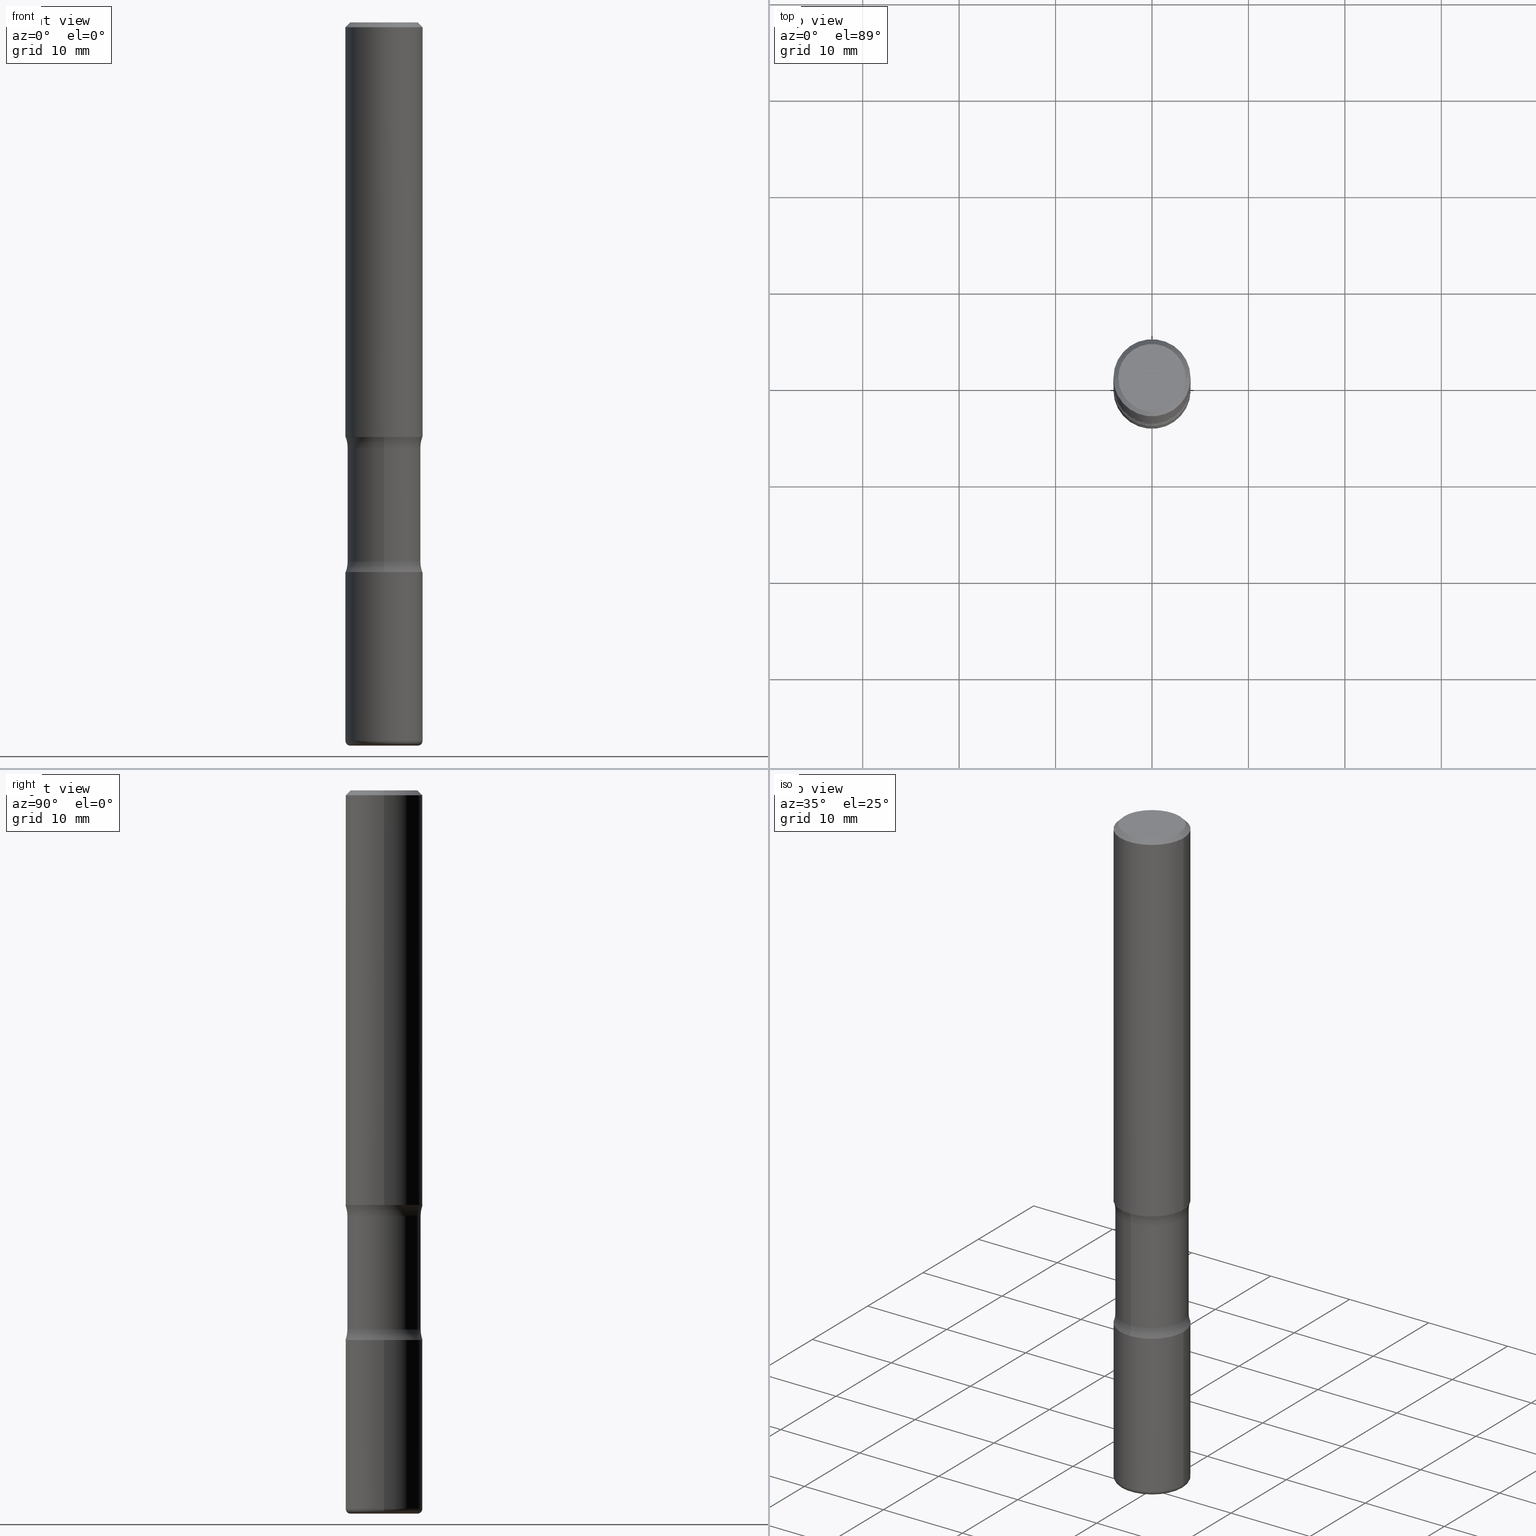
[diagram: canonical four-view strip — front | top / right | iso, engineering-drawing reading convention]
A machine part, canonical four-view strip (front | top / right | iso — engineering-drawing reading convention). The complete STEP part file that produces these views, byte-faithful:
ISO-10303-21;
HEADER;
FILE_DESCRIPTION (( 'STEP AP203' ),
    '1' );
FILE_NAME ('47655.STEP',
    '2024-03-02T06:32:56',
    ( '' ),
    ( '' ),
    'SwSTEP 2.0',
    'SolidWorks 2023',
    '' );
FILE_SCHEMA (( 'CONFIG_CONTROL_DESIGN' ));
ENDSEC;

DATA;
#1 = DIRECTION ( 'NONE',  ( -2.131257620516682695E-29, 3.941449640510431903E-15, 1.000000000000000000 ) ) ;
#2 = APPROVAL_STATUS ( 'not_yet_approved' ) ;
#3 = FACE_OUTER_BOUND ( 'NONE', #237, .T. ) ;
#4 = LINE ( 'NONE', #135, #240 ) ;
#5 = ORIENTED_EDGE ( 'NONE', *, *, #348, .F. ) ;
#6 = CARTESIAN_POINT ( 'NONE',  ( -0.1575000000000000011, 1.119104808822157801E-15, -7.747322767151475583E-30 ) ) ;
#7 = AXIS2_PLACEMENT_3D ( 'NONE', #51, #301, #9 ) ;
#8 = CIRCLE ( 'NONE', #286, 0.1575000000000000844 ) ;
#9 = DIRECTION ( 'NONE',  ( 1.000000000000000000, -6.982962677686272233E-15, 0.000000000000000000 ) ) ;
#10 = PERSON ( 'UNSPECIFIED', 'UNSPECIFIED', 'UNSPECIFIED', ('UNSPECIFIED'), ('UNSPECIFIED'), ('UNSPECIFIED') ) ;
#11 = EDGE_LOOP ( 'NONE', ( #337, #365 ) ) ;
#12 = DIRECTION ( 'NONE',  ( 2.131257620516683255E-29, -3.941449640510431903E-15, -1.000000000000000000 ) ) ;
#13 = VERTEX_POINT ( 'NONE', #328 ) ;
#14 = CARTESIAN_POINT ( 'NONE',  ( 0.1575000000000000844, -8.935049894233489031E-15, -2.244099999999999540 ) ) ;
#15 = ADVANCED_FACE ( 'NONE', ( #201 ), #378, .T. ) ;
#16 = UNCERTAINTY_MEASURE_WITH_UNIT (LENGTH_MEASURE( 1.000000000000000082E-05 ), #236, 'distance_accuracy_value', 'NONE');
#17 = ORIENTED_EDGE ( 'NONE', *, *, #103, .T. ) ;
#18 = EDGE_CURVE ( 'NONE', #362, #153, #387, .T. ) ;
#19 = CIRCLE ( 'NONE', #438, 0.1249999999999999861 ) ;
#20 = LOCAL_TIME ( 1, 32, 56.00000000000000000, #57 ) ;
#21 = ORIENTED_EDGE ( 'NONE', *, *, #131, .T. ) ;
#22 = ORIENTED_EDGE ( 'NONE', *, *, #316, .T. ) ;
#23 = ORIENTED_EDGE ( 'NONE', *, *, #485, .F. ) ;
#24 = ADVANCED_FACE ( 'NONE', ( #461 ), #80, .F. ) ;
#25 = APPLICATION_CONTEXT ( 'configuration controlled 3d designs of mechanical parts and assemblies' ) ;
#26 = AXIS2_PLACEMENT_3D ( 'NONE', #169, #334, #254 ) ;
#27 = CIRCLE ( 'NONE', #481, 0.1575000000000000566 ) ;
#28 = VERTEX_POINT ( 'NONE', #542 ) ;
#29 = AXIS2_PLACEMENT_3D ( 'NONE', #315, #480, #69 ) ;
#30 = ORIENTED_EDGE ( 'NONE', *, *, #494, .F. ) ;
#31 = PERSON_AND_ORGANIZATION_ROLE ( 'design_owner' ) ;
#32 = EDGE_CURVE ( 'NONE', #207, #486, #376, .T. ) ;
#33 = CARTESIAN_POINT ( 'NONE',  ( -0.1575000000000000289, -9.121759106138672895E-15, -2.933100000000000041 ) ) ;
#34 = APPROVAL_ROLE ( '' ) ;
#35 = CARTESIAN_POINT ( 'NONE',  ( -0.1575000000000000844, -1.871348957896992789E-15, -1.692999999999999616 ) ) ;
#36 = ADVANCED_FACE ( 'NONE', ( #84 ), #501, .T. ) ;
#37 = VERTEX_POINT ( 'NONE', #210 ) ;
#38 = CIRCLE ( 'NONE', #367, 0.01969999999999985998 ) ;
#39 = LOCAL_TIME ( 1, 32, 56.00000000000000000, #385 ) ;
#40 = SHAPE_DEFINITION_REPRESENTATION ( #212, #42 ) ;
#41 = CARTESIAN_POINT ( 'NONE',  ( 5.394669899984199995E-29, -7.662861192454106657E-15, -2.200366831809254631 ) ) ;
#42 = ADVANCED_BREP_SHAPE_REPRESENTATION ( '47655', ( #532, #160, #527, #411 ), #341 ) ;
#43 = VERTEX_POINT ( 'NONE', #244 ) ;
#44 = ADVANCED_FACE ( 'NONE', ( #158 ), #403, .F. ) ;
#45 = PERSON_AND_ORGANIZATION ( #10, #388 ) ;
#46 = DIRECTION ( 'NONE',  ( 0.7071067811865479058, -7.319954787623257623E-15, -0.7071067811865471286 ) ) ;
#47 = DIRECTION ( 'NONE',  ( -2.445468806185136597E-29, 3.491481338843145583E-15, 1.000000000000000000 ) ) ;
#48 = EDGE_LOOP ( 'NONE', ( #326, #23 ) ) ;
#49 = EDGE_CURVE ( 'NONE', #13, #358, #352, .T. ) ;
#50 = LINE ( 'NONE', #554, #271 ) ;
#51 = CARTESIAN_POINT ( 'NONE',  ( 7.172804555421624566E-29, -1.024086391496083050E-14, -2.933100000000000041 ) ) ;
#52 = ORIENTED_EDGE ( 'NONE', *, *, #200, .F. ) ;
#53 = AXIS2_PLACEMENT_3D ( 'NONE', #171, #122, #414 ) ;
#54 = APPROVAL_PERSON_ORGANIZATION ( #45, #528, #34 ) ;
#55 = DIRECTION ( 'NONE',  ( -2.445468806185136597E-29, 3.491481338843145583E-15, 1.000000000000000000 ) ) ;
#56 = EDGE_LOOP ( 'NONE', ( #195, #30, #443, #127 ) ) ;
#57 = COORDINATED_UNIVERSAL_TIME_OFFSET ( 5, 0, .BEHIND. ) ;
#58 = DIRECTION ( 'NONE',  ( -1.000000000000000000, 6.982962677686265922E-15, -4.883557194083112901E-29 ) ) ;
#59 = APPROVAL_DATE_TIME ( #140, #528 ) ;
#60 = CARTESIAN_POINT ( 'NONE',  ( 0.000000000000000000, 0.000000000000000000, 0.000000000000000000 ) ) ;
#61 = DIRECTION ( 'NONE',  ( 6.982962677686264344E-15, 1.000000000000000000, -3.469013325287956843E-15 ) ) ;
#62 = CC_DESIGN_PERSON_AND_ORGANIZATION_ASSIGNMENT ( #83, #31, ( #294 ) ) ;
#63 = DIRECTION ( 'NONE',  ( 1.000000000000000000, -6.982962677686264344E-15, 0.000000000000000000 ) ) ;
#64 = DIRECTION ( 'NONE',  ( 7.105427357601001859E-15, 1.000000000000000000, -3.491481338843145583E-15 ) ) ;
#65 = CLOSED_SHELL ( 'NONE', ( #36, #225, #287, #394, #159, #139 ) ) ;
#66 = CIRCLE ( 'NONE', #29, 0.1378000000000000891 ) ;
#67 = VERTEX_POINT ( 'NONE', #33 ) ;
#68 = EDGE_CURVE ( 'NONE', #390, #366, #446, .T. ) ;
#69 = DIRECTION ( 'NONE',  ( 1.000000000000000000, -6.982962677686261977E-15, 0.000000000000000000 ) ) ;
#70 = ORIENTED_EDGE ( 'NONE', *, *, #348, .T. ) ;
#71 = ADVANCED_FACE ( 'NONE', ( #451 ), #79, .F. ) ;
#72 =( NAMED_UNIT ( * ) PLANE_ANGLE_UNIT ( ) SI_UNIT ( $, .RADIAN. ) );
#73 = ORIENTED_EDGE ( 'NONE', *, *, #194, .F. ) ;
#74 = AXIS2_PLACEMENT_3D ( 'NONE', #41, #510, #255 ) ;
#75 = VECTOR ( 'NONE', #46, 39.37007874015748143 ) ;
#76 = EDGE_LOOP ( 'NONE', ( #5, #293, #318, #138 ) ) ;
#77 = ORIENTED_EDGE ( 'NONE', *, *, #449, .F. ) ;
#78 = CARTESIAN_POINT ( 'NONE',  ( 7.172804555421624566E-29, -1.024086391496083050E-14, -2.933100000000000041 ) ) ;
#79 = PLANE ( 'NONE',  #252 ) ;
#80 = TOROIDAL_SURFACE ( 'NONE', #155, 0.2745999999999999552, 0.1249999999999999861 ) ;
#81 = CIRCLE ( 'NONE', #272, 0.1574999999999998346 ) ;
#82 = ORIENTED_EDGE ( 'NONE', *, *, #121, .T. ) ;
#83 = PERSON_AND_ORGANIZATION ( #10, #388 ) ;
#84 = FACE_OUTER_BOUND ( 'NONE', #189, .T. ) ;
#85 = EDGE_CURVE ( 'NONE', #43, #67, #27, .T. ) ;
#86 = DIRECTION ( 'NONE',  ( 2.131257620516683255E-29, -3.941449640510431903E-15, -1.000000000000000000 ) ) ;
#87 = DIRECTION ( 'NONE',  ( 2.131257620516683255E-29, -3.941449640510431903E-15, -1.000000000000000000 ) ) ;
#88 = DATE_AND_TIME ( #333, #518 ) ;
#89 = FACE_OUTER_BOUND ( 'NONE', #399, .T. ) ;
#90 = ORIENTED_EDGE ( 'NONE', *, *, #32, .T. ) ;
#91 = CIRCLE ( 'NONE', #557, 0.1574999999999998901 ) ;
#92 = APPROVAL_STATUS ( 'not_yet_approved' ) ;
#93 = DIRECTION ( 'NONE',  ( -1.000000000000000000, 6.982962677686266711E-15, 0.000000000000000000 ) ) ;
#94 = CC_DESIGN_PERSON_AND_ORGANIZATION_ASSIGNMENT ( #552, #248, ( #455 ) ) ;
#95 = DIRECTION ( 'NONE',  ( 1.000000000000000000, -6.982962677686279332E-15, 0.000000000000000000 ) ) ;
#96 = LINE ( 'NONE', #134, #75 ) ;
#97 = DATE_AND_TIME ( #133, #20 ) ;
#98 = CARTESIAN_POINT ( 'NONE',  ( 7.172804555421624566E-29, -1.024086391496083050E-14, -2.933100000000000041 ) ) ;
#99 = CYLINDRICAL_SURFACE ( 'NONE', #119, 0.1575000000000000011 ) ;
#100 = ORIENTED_EDGE ( 'NONE', *, *, #251, .F. ) ;
#101 = CONICAL_SURFACE ( 'NONE', #164, 0.1574999999999998901, 0.7853981633974488341 ) ;
#102 = VECTOR ( 'NONE', #145, 39.37007874015748143 ) ;
#103 = EDGE_CURVE ( 'NONE', #67, #129, #347, .T. ) ;
#104 = DIRECTION ( 'NONE',  ( 2.131257620516683255E-29, -3.941449640510431903E-15, -1.000000000000000000 ) ) ;
#105 = LINE ( 'NONE', #425, #396 ) ;
#106 = DIRECTION ( 'NONE',  ( 2.131257620516683255E-29, -3.941449640510431903E-15, -1.000000000000000000 ) ) ;
#107 = EDGE_CURVE ( 'NONE', #274, #270, #280, .T. ) ;
#108 = DIRECTION ( 'NONE',  ( -1.000000000000000000, 6.982962677686265922E-15, -4.876176775795935793E-29 ) ) ;
#109 = EDGE_LOOP ( 'NONE', ( #232, #17, #73, #52 ) ) ;
#110 = PLANE ( 'NONE',  #511 ) ;
#111 = AXIS2_PLACEMENT_3D ( 'NONE', #521, #220, #61 ) ;
#112 = APPROVAL ( #2, 'UNSPECIFIED' ) ;
#113 = ORIENTED_EDGE ( 'NONE', *, *, #487, .T. ) ;
#114 = FACE_OUTER_BOUND ( 'NONE', #450, .T. ) ;
#115 = EDGE_LOOP ( 'NONE', ( #197, #77 ) ) ;
#116 = DIMENSIONAL_EXPONENTS ( 1.000000000000000000, 0.000000000000000000, 0.000000000000000000, 0.000000000000000000, 0.000000000000000000, 0.000000000000000000, 0.000000000000000000 ) ;
#117 = ORIENTED_EDGE ( 'NONE', *, *, #68, .F. ) ;
#118 = EDGE_CURVE ( 'NONE', #229, #486, #217, .T. ) ;
#119 = AXIS2_PLACEMENT_3D ( 'NONE', #60, #47, #311 ) ;
#120 = ORIENTED_EDGE ( 'NONE', *, *, #85, .F. ) ;
#121 = EDGE_CURVE ( 'NONE', #274, #447, #105, .T. ) ;
#122 = DIRECTION ( 'NONE',  ( -2.445468806185136597E-29, 3.491481338843145583E-15, 1.000000000000000000 ) ) ;
#123 = CARTESIAN_POINT ( 'NONE',  ( 7.172804555421624566E-29, -1.024086391496083050E-14, -2.933100000000000041 ) ) ;
#124 = AXIS2_PLACEMENT_3D ( 'NONE', #395, #477, #108 ) ;
#125 = EDGE_LOOP ( 'NONE', ( #531, #534, #82, #166 ) ) ;
#126 = DIRECTION ( 'NONE',  ( 6.982962677686265922E-15, 1.000000000000000000, -3.941449640510431903E-15 ) ) ;
#127 = ORIENTED_EDGE ( 'NONE', *, *, #472, .T. ) ;
#128 = DIRECTION ( 'NONE',  ( 1.000000000000000000, -6.982962677686267499E-15, 4.876176775795936353E-29 ) ) ;
#129 = VERTEX_POINT ( 'NONE', #265 ) ;
#130 = CYLINDRICAL_SURFACE ( 'NONE', #156, 0.1495999999999998442 ) ;
#131 = EDGE_CURVE ( 'NONE', #67, #43, #132, .T. ) ;
#132 = CIRCLE ( 'NONE', #7, 0.1575000000000000566 ) ;
#133 = CALENDAR_DATE ( 2024, 2, 3 ) ;
#134 = CARTESIAN_POINT ( 'NONE',  ( 0.1574999999999998901, -1.150358061425878289E-15, -0.02000000000000000042 ) ) ;
#135 = CARTESIAN_POINT ( 'NONE',  ( -0.1574999999999998901, 1.029986994958723196E-15, -0.02000000000000000042 ) ) ;
#136 = CARTESIAN_POINT ( 'NONE',  ( 4.414045222560160609E-29, -5.824734747842297613E-15, -1.736733168190744969 ) ) ;
#137 = DIRECTION ( 'NONE',  ( 2.131257620516683255E-29, -3.941449640510431903E-15, -1.000000000000000000 ) ) ;
#138 = ORIENTED_EDGE ( 'NONE', *, *, #143, .F. ) ;
#139 = ADVANCED_FACE ( 'NONE', ( #434 ), #99, .T. ) ;
#140 = DATE_AND_TIME ( #349, #219 ) ;
#141 = CIRCLE ( 'NONE', #325, 0.1249999999999999861 ) ;
#142 = CARTESIAN_POINT ( 'NONE',  ( 4.313340473293319484E-29, -5.663100375612603339E-15, -1.692999999999999616 ) ) ;
#143 = EDGE_CURVE ( 'NONE', #13, #37, #4, .T. ) ;
#144 = ORIENTED_EDGE ( 'NONE', *, *, #154, .T. ) ;
#145 = DIRECTION ( 'NONE',  ( -2.445468806185136877E-29, 3.491481338843145188E-15, 1.000000000000000000 ) ) ;
#146 = EDGE_CURVE ( 'NONE', #447, #37, #296, .T. ) ;
#147 = FACE_OUTER_BOUND ( 'NONE', #148, .T. ) ;
#148 = EDGE_LOOP ( 'NONE', ( #282, #370, #144, #479 ) ) ;
#149 = DIRECTION ( 'NONE',  ( 6.982962677686265133E-15, 1.000000000000000000, -3.652203200085917089E-15 ) ) ;
#150 = AXIS2_PLACEMENT_3D ( 'NONE', #190, #64, #276 ) ;
#151 = EDGE_LOOP ( 'NONE', ( #246, #456, #120, #235 ) ) ;
#152 = ORIENTED_EDGE ( 'NONE', *, *, #541, .F. ) ;
#153 = VERTEX_POINT ( 'NONE', #389 ) ;
#154 = EDGE_CURVE ( 'NONE', #215, #43, #38, .T. ) ;
#155 = AXIS2_PLACEMENT_3D ( 'NONE', #537, #371, #539 ) ;
#156 = AXIS2_PLACEMENT_3D ( 'NONE', #288, #86, #423 ) ;
#157 = EDGE_LOOP ( 'NONE', ( #441, #526, #231, #152 ) ) ;
#158 = FACE_OUTER_BOUND ( 'NONE', #56, .T. ) ;
#159 = ADVANCED_FACE ( 'NONE', ( #560 ), #393, .F. ) ;
#160 = MANIFOLD_SOLID_BREP ( 'Body-Move/Copy2[2]', #65 ) ;
#161 = CARTESIAN_POINT ( 'NONE',  ( 4.414045222560160609E-29, -5.824734747842297613E-15, -1.736733168190744969 ) ) ;
#162 = DATE_AND_TIME ( #540, #39 ) ;
#163 = FACE_OUTER_BOUND ( 'NONE', #76, .T. ) ;
#164 = AXIS2_PLACEMENT_3D ( 'NONE', #339, #386, #330 ) ;
#165 = AXIS2_PLACEMENT_3D ( 'NONE', #273, #55, #230 ) ;
#166 = ORIENTED_EDGE ( 'NONE', *, *, #182, .F. ) ;
#167 = COORDINATED_UNIVERSAL_TIME_OFFSET ( 5, 0, .BEHIND. ) ;
#168 = DIRECTION ( 'NONE',  ( 2.131257620516683255E-29, -3.941449640510431903E-15, -1.000000000000000000 ) ) ;
#169 = CARTESIAN_POINT ( 'NONE',  ( 0.000000000000000000, 0.000000000000000000, 0.000000000000000000 ) ) ;
#170 = DIRECTION ( 'NONE',  ( 2.131257620516683255E-29, -3.941449640510431903E-15, -1.000000000000000000 ) ) ;
#171 = CARTESIAN_POINT ( 'NONE',  ( -1.043851414335219820E-46, 1.490343170380447200E-32, 4.268512490100411279E-18 ) ) ;
#172 = SECURITY_CLASSIFICATION_LEVEL ( 'unclassified' ) ;
#173 = DIRECTION ( 'NONE',  ( -2.445468806185136597E-29, 3.491481338843145583E-15, 1.000000000000000000 ) ) ;
#174 = AXIS2_PLACEMENT_3D ( 'NONE', #493, #538, #128 ) ;
#175 = AXIS2_PLACEMENT_3D ( 'NONE', #228, #1, #181 ) ;
#176 = ORIENTED_EDGE ( 'NONE', *, *, #251, .T. ) ;
#177 = APPROVAL_DATE_TIME ( #97, #112 ) ;
#178 = APPROVAL_ROLE ( '' ) ;
#179 = CARTESIAN_POINT ( 'NONE',  ( -1.053429467557764082E-15, -0.1496000000000076158, -2.200366831809253743 ) ) ;
#180 = DIRECTION ( 'NONE',  ( -2.438088387897960049E-29, 3.491481338843145188E-15, 1.000000000000000000 ) ) ;
#181 = DIRECTION ( 'NONE',  ( -6.982962677686265922E-15, -1.000000000000000000, 3.941449640510431903E-15 ) ) ;
#182 = EDGE_CURVE ( 'NONE', #37, #447, #91, .T. ) ;
#183 = CARTESIAN_POINT ( 'NONE',  ( 0.1378000000000000891, -1.120311617194599798E-14, -2.933100000000000041 ) ) ;
#184 = VECTOR ( 'NONE', #436, 39.37007874015748143 ) ;
#185 = DIRECTION ( 'NONE',  ( -2.445468806185136597E-29, 3.491481338843145583E-15, 1.000000000000000000 ) ) ;
#186 = DIRECTION ( 'NONE',  ( -2.445468806185136597E-29, 3.491481338843145583E-15, 1.000000000000000000 ) ) ;
#187 = ADVANCED_FACE ( 'NONE', ( #147 ), #462, .T. ) ;
#188 = LINE ( 'NONE', #6, #102 ) ;
#189 = EDGE_LOOP ( 'NONE', ( #323, #113, #444, #322 ) ) ;
#190 = CARTESIAN_POINT ( 'NONE',  ( -0.1378000000000000891, -9.261736025083411415E-15, -2.933100000000000041 ) ) ;
#191 = EDGE_LOOP ( 'NONE', ( #470, #117, #22, #384 ) ) ;
#192 = VECTOR ( 'NONE', #214, 39.37007874015748143 ) ;
#193 = CIRCLE ( 'NONE', #331, 0.1249999999999999861 ) ;
#194 = EDGE_CURVE ( 'NONE', #520, #129, #517, .T. ) ;
#195 = ORIENTED_EDGE ( 'NONE', *, *, #18, .F. ) ;
#196 = ADVANCED_FACE ( 'NONE', ( #369 ), #327, .T. ) ;
#197 = ORIENTED_EDGE ( 'NONE', *, *, #107, .F. ) ;
#198 = ORIENTED_EDGE ( 'NONE', *, *, #49, .F. ) ;
#199 = DIRECTION ( 'NONE',  ( 1.000000000000000000, -6.982962677686263555E-15, 4.883557194083111780E-29 ) ) ;
#200 = EDGE_CURVE ( 'NONE', #43, #520, #424, .T. ) ;
#201 = FACE_OUTER_BOUND ( 'NONE', #522, .T. ) ;
#202 = DIRECTION ( 'NONE',  ( 6.860497997771530774E-15, 1.000000000000000000, 0.000000000000000000 ) ) ;
#203 = ORIENTED_EDGE ( 'NONE', *, *, #118, .T. ) ;
#204 = DIRECTION ( 'NONE',  ( 6.982962677686265922E-15, 1.000000000000000000, -3.469013325287951321E-15 ) ) ;
#205 = AXIS2_PLACEMENT_3D ( 'NONE', #416, #243, #505 ) ;
#206 = CC_DESIGN_APPROVAL ( #407, ( #506 ) ) ;
#207 = VERTEX_POINT ( 'NONE', #179 ) ;
#208 = DIRECTION ( 'NONE',  ( 1.000000000000000000, 0.000000000000000000, 0.000000000000000000 ) ) ;
#209 = DIRECTION ( 'NONE',  ( 1.000000000000000000, -6.982962677686265922E-15, 4.876173381029105087E-29 ) ) ;
#210 = CARTESIAN_POINT ( 'NONE',  ( -0.1574999999999998901, 1.029986994958723196E-15, -0.02000000000000000042 ) ) ;
#211 = EDGE_CURVE ( 'NONE', #366, #207, #19, .T. ) ;
#212 = PRODUCT_DEFINITION_SHAPE ( 'NONE', 'NONE',  #506 ) ;
#213 = COORDINATED_UNIVERSAL_TIME_OFFSET ( 5, 0, .BEHIND. ) ;
#214 = DIRECTION ( 'NONE',  ( -2.445468806185136877E-29, 3.491481338843145188E-15, 1.000000000000000000 ) ) ;
#215 = VERTEX_POINT ( 'NONE', #465 ) ;
#216 = DIRECTION ( 'NONE',  ( 1.000000000000000000, -6.860497997771530774E-15, 4.835288357220596862E-29 ) ) ;
#217 = LINE ( 'NONE', #306, #226 ) ;
#218 = AXIS2_PLACEMENT_3D ( 'NONE', #241, #490, #452 ) ;
#219 = LOCAL_TIME ( 1, 32, 56.00000000000000000, #213 ) ;
#220 = DIRECTION ( 'NONE',  ( 2.131257620516683255E-29, -3.941449640510431903E-15, -1.000000000000000000 ) ) ;
#221 = DIRECTION ( 'NONE',  ( 1.000000000000000000, -6.982962677686266711E-15, 0.000000000000000000 ) ) ;
#222 = DIRECTION ( 'NONE',  ( -6.982962677686265922E-15, -1.000000000000000000, 0.000000000000000000 ) ) ;
#223 = PERSON_AND_ORGANIZATION ( #10, #388 ) ;
#224 = DIRECTION ( 'NONE',  ( 6.982962677686265922E-15, 1.000000000000000000, -3.941449640510431903E-15 ) ) ;
#225 = ADVANCED_FACE ( 'NONE', ( #163 ), #101, .T. ) ;
#226 = VECTOR ( 'NONE', #469, 39.37007874015748143 ) ;
#227 = TOROIDAL_SURFACE ( 'NONE', #430, 0.2745999999999999552, 0.1249999999999999861 ) ;
#228 = CARTESIAN_POINT ( 'NONE',  ( 5.487876547960064752E-29, -7.835233272497900762E-15, -2.244099999999999540 ) ) ;
#229 = VERTEX_POINT ( 'NONE', #373 ) ;
#230 = DIRECTION ( 'NONE',  ( 1.000000000000000000, -6.982962677686264344E-15, 0.000000000000000000 ) ) ;
#231 = ORIENTED_EDGE ( 'NONE', *, *, #485, .T. ) ;
#232 = ORIENTED_EDGE ( 'NONE', *, *, #85, .T. ) ;
#233 = AXIS2_PLACEMENT_3D ( 'NONE', #302, #343, #93 ) ;
#234 = TOROIDAL_SURFACE ( 'NONE', #397, 0.2745999999999997332, 0.1249999999999999861 ) ;
#235 = ORIENTED_EDGE ( 'NONE', *, *, #154, .F. ) ;
#236 =( CONVERSION_BASED_UNIT ( 'INCH', #530 ) LENGTH_UNIT ( ) NAMED_UNIT ( #116 ) );
#237 = EDGE_LOOP ( 'NONE', ( #466, #176, #289, #364 ) ) ;
#238 = DIRECTION ( 'NONE',  ( -2.445468806185136597E-29, 3.491481338843145583E-15, 1.000000000000000000 ) ) ;
#239 = CARTESIAN_POINT ( 'NONE',  ( 4.140178688871434900E-29, -5.911077906661444587E-15, -1.692999999999999616 ) ) ;
#240 = VECTOR ( 'NONE', #298, 39.37007874015748143 ) ;
#241 = CARTESIAN_POINT ( 'NONE',  ( 5.487876547960064752E-29, -7.835233272497900762E-15, -2.244099999999999540 ) ) ;
#242 = AXIS2_PLACEMENT_3D ( 'NONE', #257, #245, #209 ) ;
#243 = DIRECTION ( 'NONE',  ( 1.000000000000000000, -6.860497997771530774E-15, 4.835288357220596862E-29 ) ) ;
#244 = CARTESIAN_POINT ( 'NONE',  ( 0.1575000000000000289, -1.134068053669641877E-14, -2.933100000000000041 ) ) ;
#245 = DIRECTION ( 'NONE',  ( -2.445468806185136597E-29, 3.491481338843145583E-15, 1.000000000000000000 ) ) ;
#246 = ORIENTED_EDGE ( 'NONE', *, *, #548, .T. ) ;
#247 = MECHANICAL_CONTEXT ( 'NONE', #25, 'mechanical' ) ;
#248 = PERSON_AND_ORGANIZATION_ROLE ( 'design_supplier' ) ;
#249 = DATE_TIME_ROLE ( 'creation_date' ) ;
#250 = CARTESIAN_POINT ( 'NONE',  ( 5.487876547960064752E-29, -7.835233272497900762E-15, -2.244099999999999540 ) ) ;
#251 = EDGE_CURVE ( 'NONE', #362, #207, #50, .T. ) ;
#252 = AXIS2_PLACEMENT_3D ( 'NONE', #239, #409, #495 ) ;
#253 = CC_DESIGN_SECURITY_CLASSIFICATION ( #281, ( #455 ) ) ;
#254 = DIRECTION ( 'NONE',  ( 1.000000000000000000, -6.982962677686265922E-15, 4.876176775795935232E-29 ) ) ;
#255 = DIRECTION ( 'NONE',  ( 6.982962677686265133E-15, 1.000000000000000000, -3.652203200085914722E-15 ) ) ;
#256 = ADVANCED_FACE ( 'NONE', ( #415 ), #497, .T. ) ;
#257 = CARTESIAN_POINT ( 'NONE',  ( -1.043851414335219820E-46, 1.490343170380447200E-32, 4.268512490100411279E-18 ) ) ;
#258 = DIRECTION ( 'NONE',  ( -2.445468806185136877E-29, 3.491481338843145188E-15, 1.000000000000000000 ) ) ;
#259 = CALENDAR_DATE ( 2024, 2, 3 ) ;
#260 = CARTESIAN_POINT ( 'NONE',  ( 1.917521551292702188E-15, 0.2745999999999922947, -2.200366831809255519 ) ) ;
#261 = CARTESIAN_POINT ( 'NONE',  ( 4.890937612370273159E-31, -6.982962677686291609E-17, -0.02000000000000000042 ) ) ;
#262 = AXIS2_PLACEMENT_3D ( 'NONE', #351, #519, #63 ) ;
#263 = APPROVAL_PERSON_ORGANIZATION ( #418, #112, #471 ) ;
#264 = CARTESIAN_POINT ( 'NONE',  ( 1.917521551292690749E-15, 0.2745999999999938490, -1.736733168190746079 ) ) ;
#265 = CARTESIAN_POINT ( 'NONE',  ( -0.1575000000000000844, -7.918943784907207238E-15, -2.244099999999999540 ) ) ;
#266 = DIRECTION ( 'NONE',  ( 6.982962677686266711E-15, 1.000000000000000000, -3.652203200085919456E-15 ) ) ;
#267 = DIRECTION ( 'NONE',  ( 1.000000000000000000, -6.982962677686272233E-15, 0.000000000000000000 ) ) ;
#268 = DIRECTION ( 'NONE',  ( -1.000000000000000000, 6.982962677686265922E-15, -4.876176775795935793E-29 ) ) ;
#269 = AXIS2_PLACEMENT_3D ( 'NONE', #504, #559, #460 ) ;
#270 = VERTEX_POINT ( 'NONE', #35 ) ;
#271 = VECTOR ( 'NONE', #168, 39.37007874015748143 ) ;
#272 = AXIS2_PLACEMENT_3D ( 'NONE', #142, #12, #346 ) ;
#273 = CARTESIAN_POINT ( 'NONE',  ( 4.140178688871434900E-29, -5.911077906661444587E-15, -1.692999999999999616 ) ) ;
#274 = VERTEX_POINT ( 'NONE', #512 ) ;
#275 = ADVANCED_FACE ( 'NONE', ( #382 ), #500, .T. ) ;
#276 = DIRECTION ( 'NONE',  ( -1.000000000000000000, 7.105427357600978193E-15, 0.000000000000000000 ) ) ;
#277 = ORIENTED_EDGE ( 'NONE', *, *, #211, .T. ) ;
#278 = CC_DESIGN_DATE_AND_TIME_ASSIGNMENT ( #88, #249, ( #506 ) ) ;
#279 = ORIENTED_EDGE ( 'NONE', *, *, #103, .F. ) ;
#280 = CIRCLE ( 'NONE', #262, 0.1575000000000000844 ) ;
#281 = SECURITY_CLASSIFICATION ( '', '', #172 ) ;
#282 = ORIENTED_EDGE ( 'NONE', *, *, #445, .F. ) ;
#283 = CARTESIAN_POINT ( 'NONE',  ( 5.487876547960064752E-29, -7.835233272497900762E-15, -2.244099999999999540 ) ) ;
#284 = DESIGN_CONTEXT ( 'detailed design', #555, 'design' ) ;
#285 = DIRECTION ( 'NONE',  ( -2.445468806185136597E-29, 3.491481338843145583E-15, 1.000000000000000000 ) ) ;
#286 = AXIS2_PLACEMENT_3D ( 'NONE', #428, #550, #204 ) ;
#287 = ADVANCED_FACE ( 'NONE', ( #89 ), #474, .T. ) ;
#288 = CARTESIAN_POINT ( 'NONE',  ( 6.998298823620237737E-29, -1.062853863272764355E-14, -2.952799999999999869 ) ) ;
#289 = ORIENTED_EDGE ( 'NONE', *, *, #300, .F. ) ;
#290 = CARTESIAN_POINT ( 'NONE',  ( 0.000000000000000000, 0.000000000000000000, 0.000000000000000000 ) ) ;
#291 = EDGE_CURVE ( 'NONE', #129, #520, #340, .T. ) ;
#292 = CARTESIAN_POINT ( 'NONE',  ( -1.883892750188007867E-15, -0.2746000000000076158, -2.200366831809253299 ) ) ;
#293 = ORIENTED_EDGE ( 'NONE', *, *, #320, .T. ) ;
#294 = PRODUCT ( '47655', '47655', '', ( #247 ) ) ;
#295 = DIRECTION ( 'NONE',  ( -1.000000000000000000, 6.982962677686265922E-15, -4.883557194083112901E-29 ) ) ;
#296 = CIRCLE ( 'NONE', #324, 0.1574999999999998901 ) ;
#297 = CIRCLE ( 'NONE', #111, 0.1574999999999998346 ) ;
#298 = DIRECTION ( 'NONE',  ( -0.7071067811865479058, 2.468850131082261005E-15, -0.7071067811865471286 ) ) ;
#299 = DIRECTION ( 'NONE',  ( 1.000000000000000000, -6.982962677686263555E-15, 4.883557194083111780E-29 ) ) ;
#300 = EDGE_CURVE ( 'NONE', #486, #207, #307, .T. ) ;
#301 = DIRECTION ( 'NONE',  ( -2.445468806185136597E-29, 3.491481338843145583E-15, 1.000000000000000000 ) ) ;
#302 = CARTESIAN_POINT ( 'NONE',  ( 4.890937612370273159E-31, -6.982962677686291609E-17, -0.02000000000000000042 ) ) ;
#303 = ORIENTED_EDGE ( 'NONE', *, *, #194, .T. ) ;
#304 = PERSON_AND_ORGANIZATION_ROLE ( 'creator' ) ;
#305 = CARTESIAN_POINT ( 'NONE',  ( 1.099816621735628501E-15, 0.1574999999999941169, -1.693000000000000282 ) ) ;
#306 = CARTESIAN_POINT ( 'NONE',  ( 1.044651216581934232E-15, 0.1495999999999892416, -2.952800000000000313 ) ) ;
#307 = CIRCLE ( 'NONE', #74, 0.1495999999999999552 ) ;
#308 = AXIS2_PLACEMENT_3D ( 'NONE', #435, #185, #356 ) ;
#309 = ORIENTED_EDGE ( 'NONE', *, *, #68, .T. ) ;
#310 = CARTESIAN_POINT ( 'NONE',  ( 1.044651216581919046E-15, 0.1495999999999922947, -2.200366831809255075 ) ) ;
#311 = DIRECTION ( 'NONE',  ( 1.000000000000000000, -6.982962677686265922E-15, 4.876176775795935232E-29 ) ) ;
#312 = ORIENTED_EDGE ( 'NONE', *, *, #291, .T. ) ;
#313 =( LENGTH_UNIT ( ) NAMED_UNIT ( * ) SI_UNIT ( $, .METRE. ) );
#314 = ORIENTED_EDGE ( 'NONE', *, *, #182, .T. ) ;
#315 = CARTESIAN_POINT ( 'NONE',  ( 7.220980290903470182E-29, -1.030964609733603853E-14, -2.952799999999999869 ) ) ;
#316 = EDGE_CURVE ( 'NONE', #390, #486, #141, .T. ) ;
#317 = AXIS2_PLACEMENT_3D ( 'NONE', #98, #463, #299 ) ;
#318 = ORIENTED_EDGE ( 'NONE', *, *, #146, .T. ) ;
#319 = CARTESIAN_POINT ( 'NONE',  ( 5.404773940080035969E-29, -7.648391631950622794E-15, -2.200366831809254631 ) ) ;
#320 = EDGE_CURVE ( 'NONE', #358, #447, #96, .T. ) ;
#321 = ORIENTED_EDGE ( 'NONE', *, *, #143, .T. ) ;
#322 = ORIENTED_EDGE ( 'NONE', *, *, #121, .F. ) ;
#323 = ORIENTED_EDGE ( 'NONE', *, *, #107, .T. ) ;
#324 = AXIS2_PLACEMENT_3D ( 'NONE', #261, #186, #556 ) ;
#325 = AXIS2_PLACEMENT_3D ( 'NONE', #260, #295, #507 ) ;
#326 = ORIENTED_EDGE ( 'NONE', *, *, #472, .F. ) ;
#327 = CYLINDRICAL_SURFACE ( 'NONE', #174, 0.1575000000000000844 ) ;
#328 = CARTESIAN_POINT ( 'NONE',  ( -0.1374999999999998723, 9.950721815702919413E-16, 4.268512490093574228E-18 ) ) ;
#329 = APPLICATION_PROTOCOL_DEFINITION ( 'international standard', 'config_control_design', 1994, #555 ) ;
#330 = DIRECTION ( 'NONE',  ( -1.000000000000000000, 6.982962677686266711E-15, 0.000000000000000000 ) ) ;
#331 = AXIS2_PLACEMENT_3D ( 'NONE', #264, #58, #222 ) ;
#332 = CARTESIAN_POINT ( 'NONE',  ( 5.394669899984199995E-29, -7.662861192454106657E-15, -2.200366831809254631 ) ) ;
#333 = CALENDAR_DATE ( 2024, 2, 3 ) ;
#334 = DIRECTION ( 'NONE',  ( -2.445468806185136597E-29, 3.491481338843145583E-15, 1.000000000000000000 ) ) ;
#335 = EDGE_CURVE ( 'NONE', #366, #390, #8, .T. ) ;
#336 = CARTESIAN_POINT ( 'NONE',  ( 0.1374999999999998723, -1.046838268059731505E-15, 4.268512490107428597E-18 ) ) ;
#337 = ORIENTED_EDGE ( 'NONE', *, *, #548, .F. ) ;
#338 = PERSON_AND_ORGANIZATION ( #10, #388 ) ;
#339 = CARTESIAN_POINT ( 'NONE',  ( 4.890937612370273159E-31, -6.982962677686291609E-17, -0.02000000000000000042 ) ) ;
#340 = CIRCLE ( 'NONE', #543, 0.1575000000000000844 ) ;
#341 =( GEOMETRIC_REPRESENTATION_CONTEXT ( 3 ) GLOBAL_UNCERTAINTY_ASSIGNED_CONTEXT ( ( #16 ) ) GLOBAL_UNIT_ASSIGNED_CONTEXT ( ( #236, #72, #502 ) ) REPRESENTATION_CONTEXT ( 'NONE', 'WORKASPACE' ) );
#342 = CARTESIAN_POINT ( 'NONE',  ( -0.1575000000000000844, 1.119104808822158392E-15, -7.747322767151481189E-30 ) ) ;
#343 = DIRECTION ( 'NONE',  ( 2.445468806185136597E-29, -3.491481338843145583E-15, -1.000000000000000000 ) ) ;
#344 = DIRECTION ( 'NONE',  ( 1.000000000000000000, -6.982962677686265922E-15, 4.876176775795935793E-29 ) ) ;
#345 = ORIENTED_EDGE ( 'NONE', *, *, #335, .F. ) ;
#346 = DIRECTION ( 'NONE',  ( 6.982962677686264344E-15, 1.000000000000000000, -3.469013325287956843E-15 ) ) ;
#347 = LINE ( 'NONE', #342, #184 ) ;
#348 = EDGE_CURVE ( 'NONE', #358, #13, #363, .T. ) ;
#349 = CALENDAR_DATE ( 2024, 2, 3 ) ;
#350 = FACE_OUTER_BOUND ( 'NONE', #408, .T. ) ;
#351 = CARTESIAN_POINT ( 'NONE',  ( 4.140178688871434900E-29, -5.911077906661444587E-15, -1.692999999999999616 ) ) ;
#352 = CIRCLE ( 'NONE', #53, 0.1374999999999998723 ) ;
#353 = CC_DESIGN_APPROVAL ( #112, ( #281 ) ) ;
#354 = ORIENTED_EDGE ( 'NONE', *, *, #320, .F. ) ;
#355 = ADVANCED_FACE ( 'NONE', ( #380 ), #234, .F. ) ;
#356 = DIRECTION ( 'NONE',  ( 1.000000000000000000, -6.982962677686261977E-15, 0.000000000000000000 ) ) ;
#357 = CARTESIAN_POINT ( 'NONE',  ( 5.487876547960064752E-29, -7.835233272497900762E-15, -2.244099999999999540 ) ) ;
#358 = VERTEX_POINT ( 'NONE', #336 ) ;
#359 = PLANE ( 'NONE',  #175 ) ;
#360 = ADVANCED_FACE ( 'NONE', ( #468 ), #130, .T. ) ;
#361 = AXIS2_PLACEMENT_3D ( 'NONE', #78, #238, #199 ) ;
#362 = VERTEX_POINT ( 'NONE', #458 ) ;
#363 = CIRCLE ( 'NONE', #242, 0.1374999999999998723 ) ;
#364 = ORIENTED_EDGE ( 'NONE', *, *, #118, .F. ) ;
#365 = ORIENTED_EDGE ( 'NONE', *, *, #491, .F. ) ;
#366 = VERTEX_POINT ( 'NONE', #377 ) ;
#367 = AXIS2_PLACEMENT_3D ( 'NONE', #183, #508, #95 ) ;
#368 = AXIS2_PLACEMENT_3D ( 'NONE', #473, #104, #433 ) ;
#369 = FACE_OUTER_BOUND ( 'NONE', #109, .T. ) ;
#370 = ORIENTED_EDGE ( 'NONE', *, *, #491, .T. ) ;
#371 = DIRECTION ( 'NONE',  ( 2.131257620516683255E-29, -3.941449640510431903E-15, -1.000000000000000000 ) ) ;
#372 = PERSON_AND_ORGANIZATION ( #10, #388 ) ;
#373 = CARTESIAN_POINT ( 'NONE',  ( 1.044651216581907805E-15, 0.1495999999999939323, -1.736733168190745635 ) ) ;
#374 = CC_DESIGN_PERSON_AND_ORGANIZATION_ASSIGNMENT ( #457, #545, ( #506 ) ) ;
#375 = DIRECTION ( 'NONE',  ( 1.000000000000000000, -6.982962677686267499E-15, 4.876176775795936353E-29 ) ) ;
#376 = CIRCLE ( 'NONE', #533, 0.1495999999999999552 ) ;
#377 = CARTESIAN_POINT ( 'NONE',  ( -1.080528434648961348E-15, -0.1575000000000078837, -2.244099999999999095 ) ) ;
#378 = CYLINDRICAL_SURFACE ( 'NONE', #524, 0.1575000000000000844 ) ;
#379 = PERSON_AND_ORGANIZATION_ROLE ( 'classification_officer' ) ;
#380 = FACE_OUTER_BOUND ( 'NONE', #157, .T. ) ;
#381 = DIRECTION ( 'NONE',  ( 6.982962677686265922E-15, 1.000000000000000000, -3.941449640510431903E-15 ) ) ;
#382 = FACE_OUTER_BOUND ( 'NONE', #11, .T. ) ;
#383 = CARTESIAN_POINT ( 'NONE',  ( 4.140178688871434900E-29, -5.911077906661444587E-15, -1.692999999999999616 ) ) ;
#384 = ORIENTED_EDGE ( 'NONE', *, *, #300, .T. ) ;
#385 = COORDINATED_UNIVERSAL_TIME_OFFSET ( 5, 0, .BEHIND. ) ;
#386 = DIRECTION ( 'NONE',  ( 2.445468806185136597E-29, -3.491481338843145583E-15, -1.000000000000000000 ) ) ;
#387 = CIRCLE ( 'NONE', #205, 0.1249999999999999861 ) ;
#388 = ORGANIZATION ( 'UNSPECIFIED', 'UNSPECIFIED', '' ) ;
#389 = CARTESIAN_POINT ( 'NONE',  ( -1.080528434648971406E-15, -0.1575000000000054690, -1.692999999999999172 ) ) ;
#390 = VERTEX_POINT ( 'NONE', #523 ) ;
#391 = FACE_OUTER_BOUND ( 'NONE', #432, .T. ) ;
#392 = ADVANCED_FACE ( 'NONE', ( #3 ), #515, .T. ) ;
#393 = PLANE ( 'NONE',  #410 ) ;
#394 = ADVANCED_FACE ( 'NONE', ( #391 ), #398, .F. ) ;
#395 = CARTESIAN_POINT ( 'NONE',  ( 9.601573681818604894E-16, 0.1374999999999998723, -4.779444278458818063E-16 ) ) ;
#396 = VECTOR ( 'NONE', #258, 39.37007874015748143 ) ;
#397 = AXIS2_PLACEMENT_3D ( 'NONE', #136, #170, #126 ) ;
#398 = PLANE ( 'NONE',  #124 ) ;
#399 = EDGE_LOOP ( 'NONE', ( #354, #198, #321, #314 ) ) ;
#400 = CC_DESIGN_DATE_AND_TIME_ASSIGNMENT ( #509, #467, ( #281 ) ) ;
#401 = DIRECTION ( 'NONE',  ( 2.131257620516683255E-29, -3.941449640510431903E-15, -1.000000000000000000 ) ) ;
#402 = ORIENTED_EDGE ( 'NONE', *, *, #316, .F. ) ;
#403 = TOROIDAL_SURFACE ( 'NONE', #419, 0.2745999999999997332, 0.1249999999999999861 ) ;
#404 = ORIENTED_EDGE ( 'NONE', *, *, #49, .T. ) ;
#405 = AXIS2_PLACEMENT_3D ( 'NONE', #483, #137, #149 ) ;
#406 = ORIENTED_EDGE ( 'NONE', *, *, #291, .F. ) ;
#407 = APPROVAL ( #553, 'UNSPECIFIED' ) ;
#408 = EDGE_LOOP ( 'NONE', ( #309, #484 ) ) ;
#409 = DIRECTION ( 'NONE',  ( 2.131257620516682695E-29, -3.941449640510431903E-15, -1.000000000000000000 ) ) ;
#410 = AXIS2_PLACEMENT_3D ( 'NONE', #383, #180, #344 ) ;
#411 = AXIS2_PLACEMENT_3D ( 'NONE', #290, #417, #208 ) ;
#412 = DIRECTION ( 'NONE',  ( 2.131257620516683255E-29, -3.941449640510431903E-15, -1.000000000000000000 ) ) ;
#413 = PRODUCT_RELATED_PRODUCT_CATEGORY ( 'detail', '', ( #294 ) ) ;
#414 = DIRECTION ( 'NONE',  ( 1.000000000000000000, -6.982962677686265922E-15, 4.876173381029105087E-29 ) ) ;
#415 = FACE_OUTER_BOUND ( 'NONE', #151, .T. ) ;
#416 = CARTESIAN_POINT ( 'NONE',  ( -1.883892750188016544E-15, -0.2746000000000055619, -1.736733168190743859 ) ) ;
#417 = DIRECTION ( 'NONE',  ( 0.000000000000000000, 0.000000000000000000, 1.000000000000000000 ) ) ;
#418 = PERSON_AND_ORGANIZATION ( #10, #388 ) ;
#419 = AXIS2_PLACEMENT_3D ( 'NONE', #161, #496, #381 ) ;
#420 = DIRECTION ( 'NONE',  ( 1.000000000000000000, -6.982962677686264344E-15, 0.000000000000000000 ) ) ;
#421 = ADVANCED_FACE ( 'NONE', ( #442 ), #227, .F. ) ;
#422 = EDGE_LOOP ( 'NONE', ( #100, #529, #203, #492 ) ) ;
#423 = DIRECTION ( 'NONE',  ( 6.982962677686265133E-15, 1.000000000000000000, -3.652203200085917089E-15 ) ) ;
#424 = LINE ( 'NONE', #546, #192 ) ;
#425 = CARTESIAN_POINT ( 'NONE',  ( 0.1575000000000000011, -1.099816621735586889E-15, 7.679978421878598033E-30 ) ) ;
#426 = VERTEX_POINT ( 'NONE', #305 ) ;
#427 = COORDINATED_UNIVERSAL_TIME_OFFSET ( 5, 0, .BEHIND. ) ;
#428 = CARTESIAN_POINT ( 'NONE',  ( 5.487876547960064752E-29, -7.835233272497900762E-15, -2.244099999999999540 ) ) ;
#429 = CLOSED_SHELL ( 'NONE', ( #196, #256, #275, #187, #15, #440 ) ) ;
#430 = AXIS2_PLACEMENT_3D ( 'NONE', #319, #401, #224 ) ;
#431 = DIRECTION ( 'NONE',  ( -2.445468806185136597E-29, 3.491481338843145583E-15, 1.000000000000000000 ) ) ;
#432 = EDGE_LOOP ( 'NONE', ( #404, #70 ) ) ;
#433 = DIRECTION ( 'NONE',  ( 6.982962677686266711E-15, 1.000000000000000000, -3.652203200085919456E-15 ) ) ;
#434 = FACE_OUTER_BOUND ( 'NONE', #125, .T. ) ;
#435 = CARTESIAN_POINT ( 'NONE',  ( 7.220980290903470182E-29, -1.030964609733603853E-14, -2.952799999999999869 ) ) ;
#436 = DIRECTION ( 'NONE',  ( -2.445468806185136877E-29, 3.491481338843145188E-15, 1.000000000000000000 ) ) ;
#437 = DIRECTION ( 'NONE',  ( 2.438088387897960049E-29, -3.491481338843145188E-15, -1.000000000000000000 ) ) ;
#438 = AXIS2_PLACEMENT_3D ( 'NONE', #292, #216, #202 ) ;
#439 = AXIS2_PLACEMENT_3D ( 'NONE', #476, #106, #266 ) ;
#440 = ADVANCED_FACE ( 'NONE', ( #114 ), #110, .F. ) ;
#441 = ORIENTED_EDGE ( 'NONE', *, *, #503, .F. ) ;
#442 = FACE_OUTER_BOUND ( 'NONE', #482, .T. ) ;
#443 = ORIENTED_EDGE ( 'NONE', *, *, #541, .T. ) ;
#444 = ORIENTED_EDGE ( 'NONE', *, *, #146, .F. ) ;
#445 = EDGE_CURVE ( 'NONE', #28, #67, #464, .T. ) ;
#446 = CIRCLE ( 'NONE', #454, 0.1575000000000000844 ) ;
#447 = VERTEX_POINT ( 'NONE', #516 ) ;
#448 = CIRCLE ( 'NONE', #368, 0.1495999999999997609 ) ;
#449 = EDGE_CURVE ( 'NONE', #270, #274, #535, .T. ) ;
#450 = EDGE_LOOP ( 'NONE', ( #303, #312 ) ) ;
#451 = FACE_OUTER_BOUND ( 'NONE', #48, .T. ) ;
#452 = DIRECTION ( 'NONE',  ( 1.000000000000000000, -6.982962677686264344E-15, 0.000000000000000000 ) ) ;
#453 = DIRECTION ( 'NONE',  ( 6.982962677686265922E-15, 1.000000000000000000, -3.469013325287951321E-15 ) ) ;
#454 = AXIS2_PLACEMENT_3D ( 'NONE', #283, #412, #453 ) ;
#455 = PRODUCT_DEFINITION_FORMATION_WITH_SPECIFIED_SOURCE ( 'ANY', '', #294, .NOT_KNOWN. ) ;
#456 = ORIENTED_EDGE ( 'NONE', *, *, #445, .T. ) ;
#457 = PERSON_AND_ORGANIZATION ( #10, #388 ) ;
#458 = CARTESIAN_POINT ( 'NONE',  ( -1.053429467557773351E-15, -0.1496000000000056174, -1.736733168190744525 ) ) ;
#459 = DIRECTION ( 'NONE',  ( -2.445468806185136597E-29, 3.491481338843145583E-15, 1.000000000000000000 ) ) ;
#460 = DIRECTION ( 'NONE',  ( -1.000000000000000000, 6.982962677686265922E-15, -4.876176775795935793E-29 ) ) ;
#461 = FACE_OUTER_BOUND ( 'NONE', #191, .T. ) ;
#462 = TOROIDAL_SURFACE ( 'NONE', #361, 0.1378000000000000891, 0.01969999999999987733 ) ;
#463 = DIRECTION ( 'NONE',  ( -2.445468806185136597E-29, 3.491481338843145583E-15, 1.000000000000000000 ) ) ;
#464 = CIRCLE ( 'NONE', #150, 0.01969999999999985998 ) ;
#465 = CARTESIAN_POINT ( 'NONE',  ( 0.1378000000000000891, -1.127189835432120600E-14, -2.952799999999999869 ) ) ;
#466 = ORIENTED_EDGE ( 'NONE', *, *, #494, .T. ) ;
#467 = DATE_TIME_ROLE ( 'classification_date' ) ;
#468 = FACE_OUTER_BOUND ( 'NONE', #422, .T. ) ;
#469 = DIRECTION ( 'NONE',  ( 2.131257620516683255E-29, -3.941449640510431903E-15, -1.000000000000000000 ) ) ;
#470 = ORIENTED_EDGE ( 'NONE', *, *, #211, .F. ) ;
#471 = APPROVAL_ROLE ( '' ) ;
#472 = EDGE_CURVE ( 'NONE', #426, #153, #297, .T. ) ;
#473 = CARTESIAN_POINT ( 'NONE',  ( 4.406547121269184241E-29, -5.835472455656399811E-15, -1.736733168190745191 ) ) ;
#474 = CONICAL_SURFACE ( 'NONE', #233, 0.1574999999999998901, 0.7853981633974488341 ) ;
#475 = APPROVAL_PERSON_ORGANIZATION ( #372, #407, #178 ) ;
#476 = CARTESIAN_POINT ( 'NONE',  ( 4.406547121269184241E-29, -5.835472455656399811E-15, -1.736733168190745191 ) ) ;
#477 = DIRECTION ( 'NONE',  ( 2.438088387897960049E-29, -3.491481338843145188E-15, -1.000000000000000000 ) ) ;
#478 = ADVANCED_FACE ( 'NONE', ( #350 ), #359, .F. ) ;
#479 = ORIENTED_EDGE ( 'NONE', *, *, #131, .F. ) ;
#480 = DIRECTION ( 'NONE',  ( -2.445468806185136597E-29, 3.491481338843145583E-15, 1.000000000000000000 ) ) ;
#481 = AXIS2_PLACEMENT_3D ( 'NONE', #123, #285, #267 ) ;
#482 = EDGE_LOOP ( 'NONE', ( #345, #277, #90, #402 ) ) ;
#483 = CARTESIAN_POINT ( 'NONE',  ( 6.998298823620237737E-29, -1.062853863272764355E-14, -2.952799999999999869 ) ) ;
#484 = ORIENTED_EDGE ( 'NONE', *, *, #335, .T. ) ;
#485 = EDGE_CURVE ( 'NONE', #153, #426, #81, .T. ) ;
#486 = VERTEX_POINT ( 'NONE', #310 ) ;
#487 = EDGE_CURVE ( 'NONE', #270, #37, #188, .T. ) ;
#488 = CLOSED_SHELL ( 'NONE', ( #392, #421, #355, #44, #71, #478, #24, #360 ) ) ;
#489 = ORIENTED_EDGE ( 'NONE', *, *, #200, .T. ) ;
#490 = DIRECTION ( 'NONE',  ( -2.445468806185136597E-29, 3.491481338843145583E-15, 1.000000000000000000 ) ) ;
#491 = EDGE_CURVE ( 'NONE', #28, #215, #66, .T. ) ;
#492 = ORIENTED_EDGE ( 'NONE', *, *, #32, .F. ) ;
#493 = CARTESIAN_POINT ( 'NONE',  ( 0.000000000000000000, 0.000000000000000000, 0.000000000000000000 ) ) ;
#494 = EDGE_CURVE ( 'NONE', #229, #362, #448, .T. ) ;
#495 = DIRECTION ( 'NONE',  ( 6.982962677686265922E-15, 1.000000000000000000, -3.941449640510431903E-15 ) ) ;
#496 = DIRECTION ( 'NONE',  ( 2.131257620516683255E-29, -3.941449640510431903E-15, -1.000000000000000000 ) ) ;
#497 = TOROIDAL_SURFACE ( 'NONE', #317, 0.1378000000000000891, 0.01969999999999987733 ) ;
#498 = LOCAL_TIME ( 1, 32, 56.00000000000000000, #427 ) ;
#499 = APPROVAL_DATE_TIME ( #162, #407 ) ;
#500 = PLANE ( 'NONE',  #269 ) ;
#501 = CYLINDRICAL_SURFACE ( 'NONE', #26, 0.1575000000000000011 ) ;
#502 =( NAMED_UNIT ( * ) SI_UNIT ( $, .STERADIAN. ) SOLID_ANGLE_UNIT ( ) );
#503 = EDGE_CURVE ( 'NONE', #362, #229, #558, .T. ) ;
#504 = CARTESIAN_POINT ( 'NONE',  ( 7.220980290903470182E-29, -1.030964609733603853E-14, -2.952799999999999869 ) ) ;
#505 = DIRECTION ( 'NONE',  ( 6.860497997771530774E-15, 1.000000000000000000, 0.000000000000000000 ) ) ;
#506 = PRODUCT_DEFINITION ( 'UNKNOWN', '', #455, #284 ) ;
#507 = DIRECTION ( 'NONE',  ( -6.982962677686265922E-15, -1.000000000000000000, 0.000000000000000000 ) ) ;
#508 = DIRECTION ( 'NONE',  ( -6.982962677686266711E-15, -1.000000000000000000, 3.491481338843145583E-15 ) ) ;
#509 = DATE_AND_TIME ( #259, #498 ) ;
#510 = DIRECTION ( 'NONE',  ( 2.131257620516683255E-29, -3.941449640510431903E-15, -1.000000000000000000 ) ) ;
#511 = AXIS2_PLACEMENT_3D ( 'NONE', #357, #437, #268 ) ;
#512 = CARTESIAN_POINT ( 'NONE',  ( 0.1575000000000000844, -7.010894528397031278E-15, -1.692999999999999616 ) ) ;
#513 = CC_DESIGN_PERSON_AND_ORGANIZATION_ASSIGNMENT ( #223, #304, ( #455 ) ) ;
#514 = CARTESIAN_POINT ( 'NONE',  ( 4.890937612370273159E-31, -6.982962677686291609E-17, -0.02000000000000000042 ) ) ;
#515 = CYLINDRICAL_SURFACE ( 'NONE', #405, 0.1495999999999998442 ) ;
#516 = CARTESIAN_POINT ( 'NONE',  ( 0.1574999999999998901, -1.150358061425878289E-15, -0.02000000000000000042 ) ) ;
#517 = CIRCLE ( 'NONE', #218, 0.1575000000000000844 ) ;
#518 = LOCAL_TIME ( 1, 32, 56.00000000000000000, #167 ) ;
#519 = DIRECTION ( 'NONE',  ( -2.445468806185136597E-29, 3.491481338843145583E-15, 1.000000000000000000 ) ) ;
#520 = VERTEX_POINT ( 'NONE', #14 ) ;
#521 = CARTESIAN_POINT ( 'NONE',  ( 4.313340473293319484E-29, -5.663100375612603339E-15, -1.692999999999999616 ) ) ;
#522 = EDGE_LOOP ( 'NONE', ( #279, #21, #489, #406 ) ) ;
#523 = CARTESIAN_POINT ( 'NONE',  ( 1.099816621735642109E-15, 0.1574999999999922295, -2.244100000000000428 ) ) ;
#524 = AXIS2_PLACEMENT_3D ( 'NONE', #551, #459, #375 ) ;
#525 = CC_DESIGN_APPROVAL ( #528, ( #455 ) ) ;
#526 = ORIENTED_EDGE ( 'NONE', *, *, #18, .T. ) ;
#527 = MANIFOLD_SOLID_BREP ( 'Body-Move/Copy2[4]', #488 ) ;
#528 = APPROVAL ( #92, 'UNSPECIFIED' ) ;
#529 = ORIENTED_EDGE ( 'NONE', *, *, #503, .T. ) ;
#530 = LENGTH_MEASURE_WITH_UNIT ( LENGTH_MEASURE( 0.02539999999999999897 ), #313 );
#531 = ORIENTED_EDGE ( 'NONE', *, *, #487, .F. ) ;
#532 = MANIFOLD_SOLID_BREP ( 'Body-Move/Copy2[1]', #429 ) ;
#533 = AXIS2_PLACEMENT_3D ( 'NONE', #332, #87, #547 ) ;
#534 = ORIENTED_EDGE ( 'NONE', *, *, #449, .T. ) ;
#535 = CIRCLE ( 'NONE', #165, 0.1575000000000000844 ) ;
#536 = CC_DESIGN_PERSON_AND_ORGANIZATION_ASSIGNMENT ( #338, #379, ( #281 ) ) ;
#537 = CARTESIAN_POINT ( 'NONE',  ( 5.404773940080035969E-29, -7.648391631950622794E-15, -2.200366831809254631 ) ) ;
#538 = DIRECTION ( 'NONE',  ( -2.445468806185136597E-29, 3.491481338843145583E-15, 1.000000000000000000 ) ) ;
#539 = DIRECTION ( 'NONE',  ( 6.982962677686265922E-15, 1.000000000000000000, -3.941449640510431903E-15 ) ) ;
#540 = CALENDAR_DATE ( 2024, 2, 3 ) ;
#541 = EDGE_CURVE ( 'NONE', #229, #426, #193, .T. ) ;
#542 = CARTESIAN_POINT ( 'NONE',  ( -0.1378000000000000891, -9.226138656798647747E-15, -2.952799999999999869 ) ) ;
#543 = AXIS2_PLACEMENT_3D ( 'NONE', #250, #173, #420 ) ;
#544 = CIRCLE ( 'NONE', #308, 0.1378000000000000891 ) ;
#545 = PERSON_AND_ORGANIZATION_ROLE ( 'creator' ) ;
#546 = CARTESIAN_POINT ( 'NONE',  ( 0.1575000000000000844, -1.099816621735587677E-15, 7.679978421878603638E-30 ) ) ;
#547 = DIRECTION ( 'NONE',  ( 6.982962677686265133E-15, 1.000000000000000000, -3.652203200085914722E-15 ) ) ;
#548 = EDGE_CURVE ( 'NONE', #215, #28, #544, .T. ) ;
#549 = APPLICATION_PROTOCOL_DEFINITION ( 'international standard', 'config_control_design', 1994, #25 ) ;
#550 = DIRECTION ( 'NONE',  ( 2.131257620516683255E-29, -3.941449640510431903E-15, -1.000000000000000000 ) ) ;
#551 = CARTESIAN_POINT ( 'NONE',  ( 0.000000000000000000, 0.000000000000000000, 0.000000000000000000 ) ) ;
#552 = PERSON_AND_ORGANIZATION ( #10, #388 ) ;
#553 = APPROVAL_STATUS ( 'not_yet_approved' ) ;
#554 = CARTESIAN_POINT ( 'NONE',  ( -1.026330500466550053E-15, -0.1496000000000104746, -2.952799999999998981 ) ) ;
#555 = APPLICATION_CONTEXT ( 'configuration controlled 3d designs of mechanical parts and assemblies' ) ;
#556 = DIRECTION ( 'NONE',  ( 1.000000000000000000, -6.982962677686266711E-15, 0.000000000000000000 ) ) ;
#557 = AXIS2_PLACEMENT_3D ( 'NONE', #514, #431, #221 ) ;
#558 = CIRCLE ( 'NONE', #439, 0.1495999999999997609 ) ;
#559 = DIRECTION ( 'NONE',  ( 2.438088387897960049E-29, -3.491481338843145188E-15, -1.000000000000000000 ) ) ;
#560 = FACE_OUTER_BOUND ( 'NONE', #115, .T. ) ;
ENDSEC;
END-ISO-10303-21;
